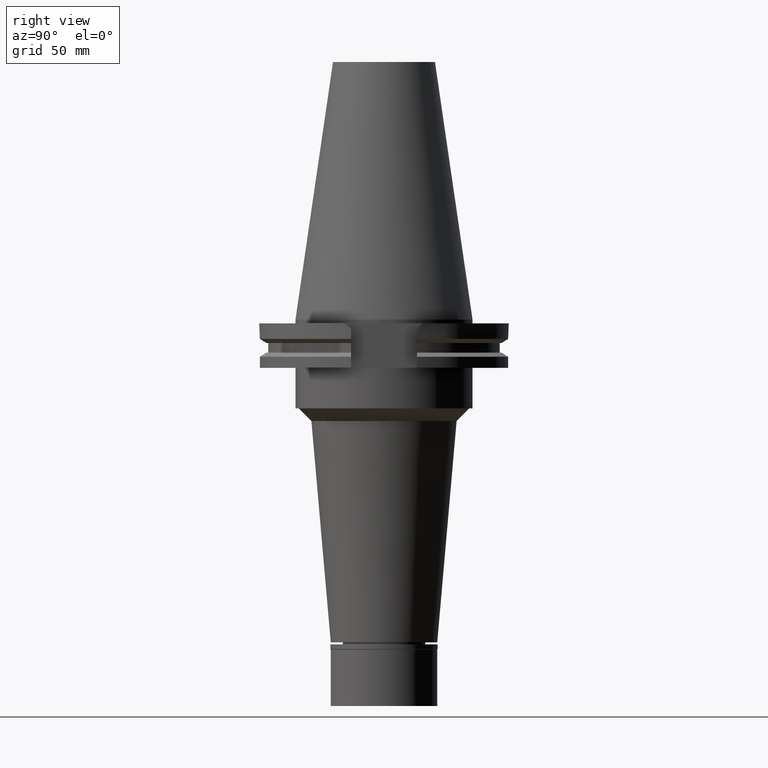
[diagram: clean part render]
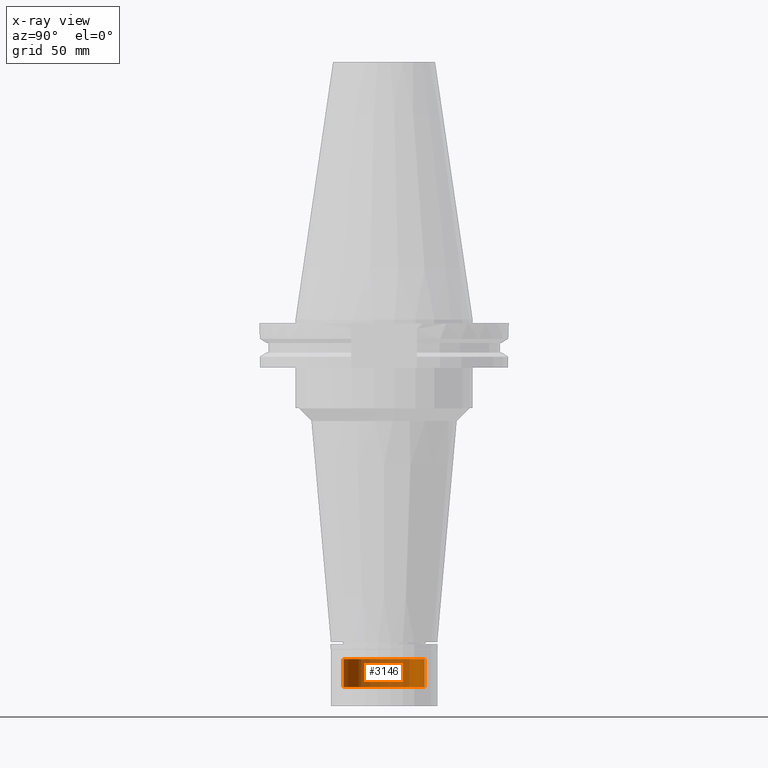
[diagram: x-ray — body ghosted, one internal face saturated and labeled with its STEP entity id]
A machine part, right view, then the same camera in x-ray: the body is ghosted and one INTERNAL B-rep face — a face not visible from any outside direction — is saturated and labeled: STEP entity #3146.
In plain terms, the highlighted cylindrical surface (partial cylindrical patch) has radius 16 mm, axis along (0, 0, -1).
Its self-contained STEP definition (entity closure, byte-faithful):
#60 = DIRECTION ( 'NONE',  ( 0.0000000000000000000, 1.000000000000000000, 0.0000000000000000000 ) ) ;
#250 = VECTOR ( 'NONE', #3020, 1000.000000000000000 ) ;
#334 = ORIENTED_EDGE ( 'NONE', *, *, #882, .F. ) ;
#373 = DIRECTION ( 'NONE',  ( 0.0000000000000000000, 0.0000000000000000000, -1.000000000000000000 ) ) ;
#465 = EDGE_CURVE ( 'NONE', #3056, #1519, #3240, .T. ) ;
#482 = AXIS2_PLACEMENT_3D ( 'NONE', #2163, #373, #2672 ) ;
#548 = CARTESIAN_POINT ( 'NONE',  ( 0.0000000000000000000, 2.619825665075999614E-14, -144.9000000000000057 ) ) ;
#733 = CARTESIAN_POINT ( 'NONE',  ( 0.0000000000000000000, 16.00000000000000000, -144.9000000000000057 ) ) ;
#882 = EDGE_CURVE ( 'NONE', #2558, #1519, #1198, .T. ) ;
#1095 = DIRECTION ( 'NONE',  ( 0.0000000000000000000, 0.0000000000000000000, 1.000000000000000000 ) ) ;
#1142 = AXIS2_PLACEMENT_3D ( 'NONE', #1461, #2721, #3288 ) ;
#1198 = LINE ( 'NONE', #2754, #250 ) ;
#1461 = CARTESIAN_POINT ( 'NONE',  ( 0.0000000000000000000, 2.619825665075999614E-14, 113.9249999999999972 ) ) ;
#1507 = CIRCLE ( 'NONE', #482, 16.00000000000000000 ) ;
#1519 = VERTEX_POINT ( 'NONE', #3287 ) ;
#1608 = ORIENTED_EDGE ( 'NONE', *, *, #465, .T. ) ;
#1722 = VERTEX_POINT ( 'NONE', #2371 ) ;
#1857 = EDGE_CURVE ( 'NONE', #2558, #1722, #1507, .T. ) ;
#2002 = EDGE_CURVE ( 'NONE', #1722, #3056, #3021, .T. ) ;
#2023 = DIRECTION ( 'NONE',  ( 0.0000000000000000000, 0.0000000000000000000, -1.000000000000000000 ) ) ;
#2046 = CARTESIAN_POINT ( 'NONE',  ( 0.0000000000000000000, 16.00000000000000000, -133.8999999999999773 ) ) ;
#2163 = CARTESIAN_POINT ( 'NONE',  ( 0.0000000000000000000, 2.619825665075999614E-14, -133.8999999999999773 ) ) ;
#2175 = ORIENTED_EDGE ( 'NONE', *, *, #2002, .T. ) ;
#2371 = CARTESIAN_POINT ( 'NONE',  ( 0.0000000000000000000, 16.00000000000000000, -133.8999999999999773 ) ) ;
#2386 = AXIS2_PLACEMENT_3D ( 'NONE', #548, #1095, #60 ) ;
#2405 = ORIENTED_EDGE ( 'NONE', *, *, #1857, .T. ) ;
#2461 = EDGE_LOOP ( 'NONE', ( #1608, #334, #2405, #2175 ) ) ;
#2558 = VERTEX_POINT ( 'NONE', #3314 ) ;
#2672 = DIRECTION ( 'NONE',  ( 0.0000000000000000000, -1.000000000000000000, 0.0000000000000000000 ) ) ;
#2721 = DIRECTION ( 'NONE',  ( 0.0000000000000000000, 0.0000000000000000000, -1.000000000000000000 ) ) ;
#2754 = CARTESIAN_POINT ( 'NONE',  ( 0.0000000000000000000, -16.00000000000000000, -133.8999999999999773 ) ) ;
#2785 = CYLINDRICAL_SURFACE ( 'NONE', #1142, 16.00000000000000000 ) ;
#3009 = VECTOR ( 'NONE', #2023, 1000.000000000000000 ) ;
#3020 = DIRECTION ( 'NONE',  ( 0.0000000000000000000, 0.0000000000000000000, -1.000000000000000000 ) ) ;
#3021 = LINE ( 'NONE', #2046, #3009 ) ;
#3056 = VERTEX_POINT ( 'NONE', #733 ) ;
#3146 = ADVANCED_FACE ( 'NONE', ( #3308 ), #2785, .T. ) ;
#3240 = CIRCLE ( 'NONE', #2386, 16.00000000000000000 ) ;
#3287 = CARTESIAN_POINT ( 'NONE',  ( 0.0000000000000000000, -16.00000000000000000, -144.9000000000000057 ) ) ;
#3288 = DIRECTION ( 'NONE',  ( 0.0000000000000000000, -1.000000000000000000, 0.0000000000000000000 ) ) ;
#3308 = FACE_OUTER_BOUND ( 'NONE', #2461, .T. ) ;
#3314 = CARTESIAN_POINT ( 'NONE',  ( 0.0000000000000000000, -16.00000000000000000, -133.8999999999999773 ) ) ;